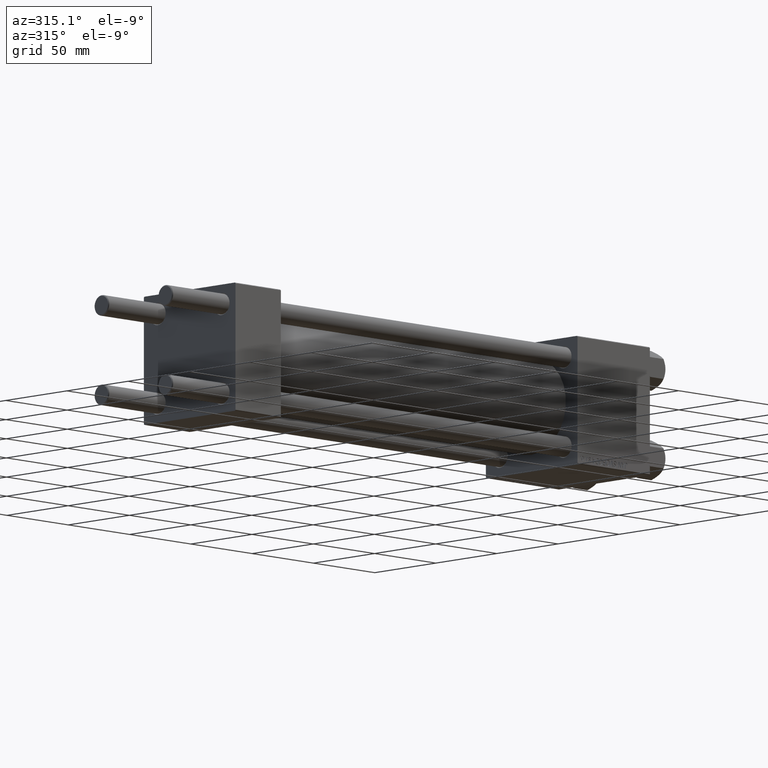
[diagram: clean part render]
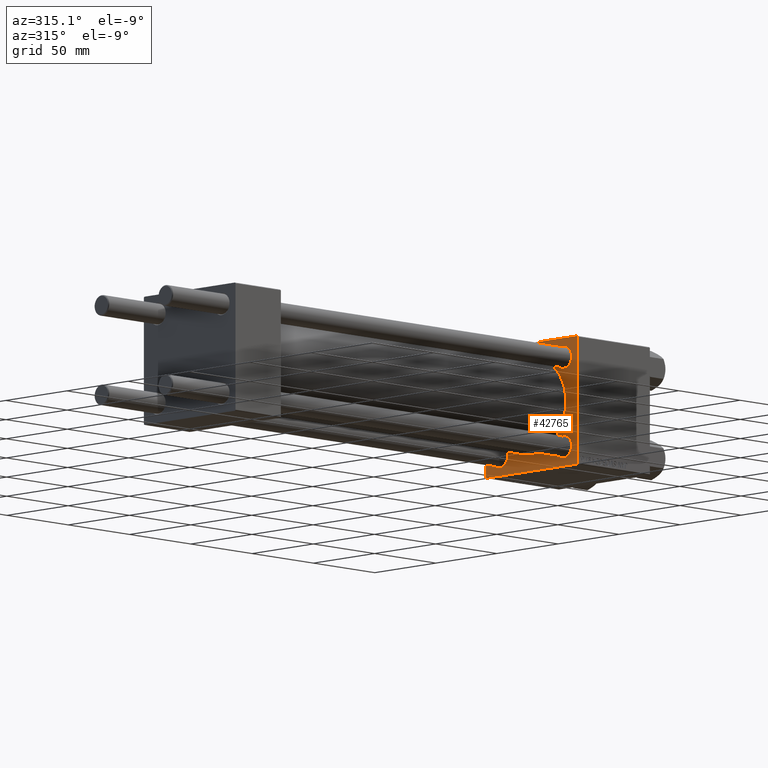
[diagram: same view with one face highlighted and labeled with its STEP entity id]
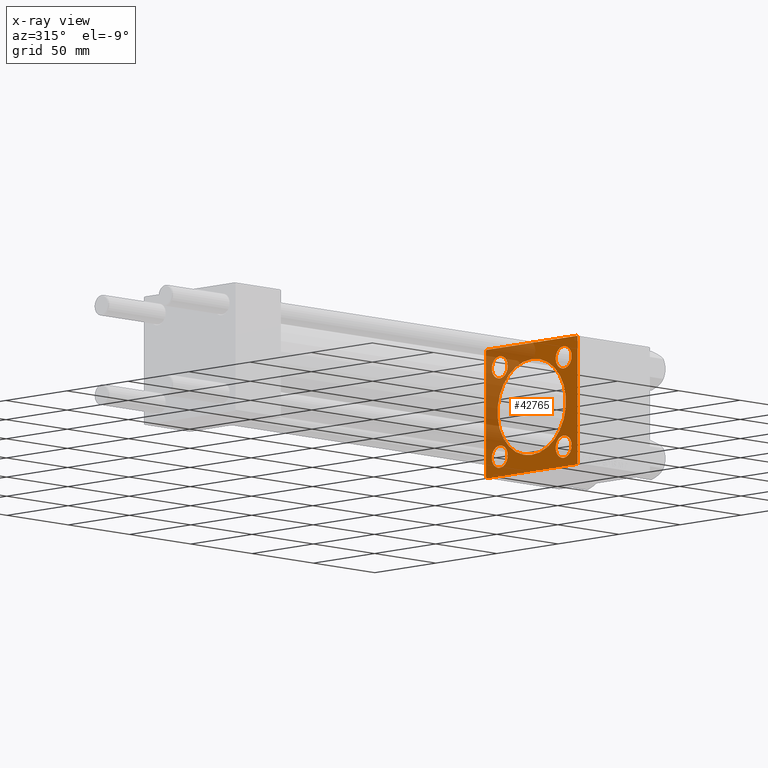
[diagram: x-ray of the same camera — body ghosted, the highlighted face saturated]
A machine part, auxiliary view. The second image highlights one B-rep face of the part: STEP entity #42765.
The next image is the same camera in x-ray: the body ghosted, the highlighted face saturated — about 35% of this face is hidden behind the body in this view.
In plain terms, the highlighted planar face has unit normal (-1, 0, 0).
Its self-contained STEP definition (entity closure, byte-faithful):
#100 = FACE_BOUND ( 'NONE', #22859, .T. ) ;
#249 = VECTOR ( 'NONE', #28038, 1000.000000000000114 ) ;
#697 = CARTESIAN_POINT ( 'NONE',  ( 278.9999999999999432, -37.24999999999792522, -37.25000000000206057 ) ) ;
#913 = CARTESIAN_POINT ( 'NONE',  ( 278.9999999999999432, -26.14999999999999147, -26.15000000000000924 ) ) ;
#1591 = EDGE_CURVE ( 'NONE', #4741, #23432, #27929, .T. ) ;
#1916 = ORIENTED_EDGE ( 'NONE', *, *, #11212, .T. ) ;
#2122 = ORIENTED_EDGE ( 'NONE', *, *, #12270, .F. ) ;
#3001 = CARTESIAN_POINT ( 'NONE',  ( 278.9999999999999432, -37.50000000000000711, -37.00000000000000711 ) ) ;
#3381 = FACE_BOUND ( 'NONE', #7313, .T. ) ;
#3404 = VERTEX_POINT ( 'NONE', #20152 ) ;
#4026 = CIRCLE ( 'NONE', #28886, 28.00000000000000000 ) ;
#4063 = VECTOR ( 'NONE', #49111, 1000.000000000000000 ) ;
#4101 = CARTESIAN_POINT ( 'NONE',  ( 278.9999999999999432, 0.000000000000000000, 28.00000000000000000 ) ) ;
#4186 = AXIS2_PLACEMENT_3D ( 'NONE', #14898, #44824, #45074 ) ;
#4741 = VERTEX_POINT ( 'NONE', #24986 ) ;
#4775 = AXIS2_PLACEMENT_3D ( 'NONE', #12855, #39508, #9583 ) ;
#5037 = VECTOR ( 'NONE', #9227, 1000.000000000000000 ) ;
#5151 = LINE ( 'NONE', #31797, #249 ) ;
#5324 = ORIENTED_EDGE ( 'NONE', *, *, #46575, .T. ) ;
#5419 = CARTESIAN_POINT ( 'NONE',  ( 278.9999999999999432, 26.14999999999999858, -19.64999999999993818 ) ) ;
#5897 = LINE ( 'NONE', #17460, #34071 ) ;
#5959 = VERTEX_POINT ( 'NONE', #39362 ) ;
#6232 = AXIS2_PLACEMENT_3D ( 'NONE', #29224, #44571, #11119 ) ;
#6253 = DIRECTION ( 'NONE',  ( 1.000000000000000000, 0.000000000000000000, 0.000000000000000000 ) ) ;
#7163 = ORIENTED_EDGE ( 'NONE', *, *, #32907, .F. ) ;
#7289 = AXIS2_PLACEMENT_3D ( 'NONE', #23252, #42605, #11194 ) ;
#7313 = EDGE_LOOP ( 'NONE', ( #20052, #21475 ) ) ;
#7728 = DIRECTION ( 'NONE',  ( 1.000000000000000000, 0.000000000000000000, -0.000000000000000000 ) ) ;
#9110 = VERTEX_POINT ( 'NONE', #48770 ) ;
#9227 = DIRECTION ( 'NONE',  ( 0.000000000000000000, -0.7071067811865867636, 0.7071067811865081598 ) ) ;
#9343 = CARTESIAN_POINT ( 'NONE',  ( 278.9999999999999432, 37.25000000000022027, -37.24999999999970868 ) ) ;
#9351 = EDGE_LOOP ( 'NONE', ( #5324, #1916 ) ) ;
#9583 = DIRECTION ( 'NONE',  ( 0.000000000000000000, 0.000000000000000000, 1.000000000000000000 ) ) ;
#9689 = CIRCLE ( 'NONE', #7289, 6.499999999999946709 ) ;
#9772 = CARTESIAN_POINT ( 'NONE',  ( 278.9999999999999432, 26.14999999999999858, -26.15000000000000213 ) ) ;
#9889 = EDGE_CURVE ( 'NONE', #37835, #43730, #23261, .T. ) ;
#10595 = CIRCLE ( 'NONE', #4186, 6.499999999999946709 ) ;
#11119 = DIRECTION ( 'NONE',  ( 0.000000000000000000, 0.000000000000000000, 1.000000000000000000 ) ) ;
#11194 = DIRECTION ( 'NONE',  ( 0.000000000000000000, 0.000000000000000000, 1.000000000000000000 ) ) ;
#11212 = EDGE_CURVE ( 'NONE', #41543, #18047, #4026, .T. ) ;
#11673 = DIRECTION ( 'NONE',  ( 0.000000000000000000, 0.000000000000000000, 1.000000000000000000 ) ) ;
#12270 = EDGE_CURVE ( 'NONE', #3404, #49399, #29490, .T. ) ;
#12855 = CARTESIAN_POINT ( 'NONE',  ( 278.9999999999999432, 26.14999999999999858, 26.15000000000000213 ) ) ;
#12914 = ORIENTED_EDGE ( 'NONE', *, *, #40928, .T. ) ;
#12938 = VERTEX_POINT ( 'NONE', #20269 ) ;
#13032 = VECTOR ( 'NONE', #48354, 1000.000000000000000 ) ;
#13113 = EDGE_CURVE ( 'NONE', #17936, #14608, #9689, .T. ) ;
#13142 = CIRCLE ( 'NONE', #21971, 6.500000000000064837 ) ;
#13360 = DIRECTION ( 'NONE',  ( -0.000000000000000000, -0.7071067811865426878, -0.7071067811865524577 ) ) ;
#13452 = CIRCLE ( 'NONE', #41546, 6.500000000000064837 ) ;
#13807 = VERTEX_POINT ( 'NONE', #24730 ) ;
#14477 = ORIENTED_EDGE ( 'NONE', *, *, #29132, .T. ) ;
#14608 = VERTEX_POINT ( 'NONE', #19305 ) ;
#14747 = CARTESIAN_POINT ( 'NONE',  ( 278.9999999999999432, 3.429011037612589276E-15, -28.00000000000000000 ) ) ;
#14898 = CARTESIAN_POINT ( 'NONE',  ( 278.9999999999999432, 26.14999999999999858, 26.15000000000000213 ) ) ;
#14945 = CARTESIAN_POINT ( 'NONE',  ( 278.9999999999999432, 0.000000000000000000, 0.000000000000000000 ) ) ;
#14967 = DIRECTION ( 'NONE',  ( 1.000000000000000000, 0.000000000000000000, 0.000000000000000000 ) ) ;
#15439 = FACE_BOUND ( 'NONE', #42430, .T. ) ;
#15625 = CARTESIAN_POINT ( 'NONE',  ( 278.9999999999999432, 26.14999999999999858, -26.15000000000000213 ) ) ;
#15690 = CARTESIAN_POINT ( 'NONE',  ( 278.9999999999999432, 37.50000000000000000, 36.99999999999993605 ) ) ;
#16874 = DIRECTION ( 'NONE',  ( 1.000000000000000000, 0.000000000000000000, -0.000000000000000000 ) ) ;
#17393 = VERTEX_POINT ( 'NONE', #19044 ) ;
#17460 = CARTESIAN_POINT ( 'NONE',  ( 278.9999999999999432, 37.50000000000000000, 37.49999999999999289 ) ) ;
#17936 = VERTEX_POINT ( 'NONE', #26488 ) ;
#18047 = VERTEX_POINT ( 'NONE', #4101 ) ;
#18272 = EDGE_CURVE ( 'NONE', #33903, #17393, #44044, .T. ) ;
#18327 = ORIENTED_EDGE ( 'NONE', *, *, #44130, .T. ) ;
#18682 = CARTESIAN_POINT ( 'NONE',  ( 278.9999999999999432, -37.50000000000000000, 37.49999999999997868 ) ) ;
#18713 = FACE_BOUND ( 'NONE', #9351, .T. ) ;
#18981 = CARTESIAN_POINT ( 'NONE',  ( 278.9999999999999432, 0.000000000000000000, 0.000000000000000000 ) ) ;
#19044 = CARTESIAN_POINT ( 'NONE',  ( 278.9999999999999432, 36.99999999999994316, -37.50000000000000000 ) ) ;
#19305 = CARTESIAN_POINT ( 'NONE',  ( 278.9999999999999432, -26.14999999999999147, 19.65000000000005898 ) ) ;
#19368 = EDGE_CURVE ( 'NONE', #3404, #12938, #5151, .T. ) ;
#19673 = ORIENTED_EDGE ( 'NONE', *, *, #23412, .T. ) ;
#20052 = ORIENTED_EDGE ( 'NONE', *, *, #45535, .T. ) ;
#20152 = CARTESIAN_POINT ( 'NONE',  ( 278.9999999999999432, -37.50000000000000000, 36.99999999999986500 ) ) ;
#20269 = CARTESIAN_POINT ( 'NONE',  ( 278.9999999999999432, -36.99999999999988631, 37.49999999999997868 ) ) ;
#21101 = LINE ( 'NONE', #28657, #35774 ) ;
#21475 = ORIENTED_EDGE ( 'NONE', *, *, #1591, .T. ) ;
#21592 = DIRECTION ( 'NONE',  ( 0.000000000000000000, 0.000000000000000000, -1.000000000000000000 ) ) ;
#21754 = ORIENTED_EDGE ( 'NONE', *, *, #32015, .T. ) ;
#21971 = AXIS2_PLACEMENT_3D ( 'NONE', #9772, #25099, #29360 ) ;
#22343 = ORIENTED_EDGE ( 'NONE', *, *, #30239, .T. ) ;
#22344 = ORIENTED_EDGE ( 'NONE', *, *, #13113, .T. ) ;
#22859 = EDGE_LOOP ( 'NONE', ( #46976, #46409 ) ) ;
#23252 = CARTESIAN_POINT ( 'NONE',  ( 278.9999999999999432, -26.14999999999999147, 26.15000000000000924 ) ) ;
#23261 = CIRCLE ( 'NONE', #4775, 6.499999999999946709 ) ;
#23412 = EDGE_CURVE ( 'NONE', #14608, #17936, #31535, .T. ) ;
#23432 = VERTEX_POINT ( 'NONE', #24175 ) ;
#23557 = DIRECTION ( 'NONE',  ( 0.000000000000000000, 0.000000000000000000, 1.000000000000000000 ) ) ;
#23938 = AXIS2_PLACEMENT_3D ( 'NONE', #40693, #6253, #21592 ) ;
#24175 = CARTESIAN_POINT ( 'NONE',  ( 278.9999999999999432, -26.14999999999999147, -19.64999999999994529 ) ) ;
#24391 = EDGE_LOOP ( 'NONE', ( #22344, #19673 ) ) ;
#24730 = CARTESIAN_POINT ( 'NONE',  ( 278.9999999999999432, 26.14999999999999858, -32.65000000000006963 ) ) ;
#24986 = CARTESIAN_POINT ( 'NONE',  ( 278.9999999999999432, -26.14999999999999147, -32.65000000000007674 ) ) ;
#25099 = DIRECTION ( 'NONE',  ( 1.000000000000000000, 0.000000000000000000, -0.000000000000000000 ) ) ;
#25206 = EDGE_LOOP ( 'NONE', ( #14477, #22343, #2122, #37861, #7163, #12914, #42066, #30421 ) ) ;
#26488 = CARTESIAN_POINT ( 'NONE',  ( 278.9999999999999432, -26.14999999999999147, 32.64999999999995595 ) ) ;
#26691 = VECTOR ( 'NONE', #33761, 1000.000000000000000 ) ;
#27837 = EDGE_CURVE ( 'NONE', #43730, #37835, #10595, .T. ) ;
#27929 = CIRCLE ( 'NONE', #6232, 6.500000000000064837 ) ;
#28038 = DIRECTION ( 'NONE',  ( -0.000000000000000000, 0.7071067811865474617, 0.7071067811865474617 ) ) ;
#28516 = CARTESIAN_POINT ( 'NONE',  ( 278.9999999999999432, 37.50000000000000000, 37.49999999999999289 ) ) ;
#28657 = CARTESIAN_POINT ( 'NONE',  ( 278.9999999999999432, 37.24999999999996447, 37.24999999999996447 ) ) ;
#28886 = AXIS2_PLACEMENT_3D ( 'NONE', #18981, #14967, #30299 ) ;
#29048 = EDGE_CURVE ( 'NONE', #47874, #33903, #40317, .T. ) ;
#29132 = EDGE_CURVE ( 'NONE', #17393, #5959, #45339, .T. ) ;
#29224 = CARTESIAN_POINT ( 'NONE',  ( 278.9999999999999432, -26.14999999999999147, -26.15000000000000924 ) ) ;
#29360 = DIRECTION ( 'NONE',  ( 0.000000000000000000, 0.000000000000000000, 1.000000000000000000 ) ) ;
#29490 = LINE ( 'NONE', #18682, #4063 ) ;
#30239 = EDGE_CURVE ( 'NONE', #5959, #49399, #39653, .T. ) ;
#30278 = DIRECTION ( 'NONE',  ( -1.000000000000000000, -0.000000000000000000, 0.000000000000000000 ) ) ;
#30299 = DIRECTION ( 'NONE',  ( 0.000000000000000000, 0.000000000000000000, -1.000000000000000000 ) ) ;
#30421 = ORIENTED_EDGE ( 'NONE', *, *, #18272, .T. ) ;
#31479 = DIRECTION ( 'NONE',  ( 0.000000000000000000, 0.000000000000000000, 1.000000000000000000 ) ) ;
#31535 = CIRCLE ( 'NONE', #37960, 6.499999999999946709 ) ;
#31542 = VECTOR ( 'NONE', #13360, 1000.000000000000000 ) ;
#31797 = CARTESIAN_POINT ( 'NONE',  ( 278.9999999999999432, -37.24999999999992895, 37.24999999999992895 ) ) ;
#32015 = EDGE_CURVE ( 'NONE', #45649, #13807, #13142, .T. ) ;
#32907 = EDGE_CURVE ( 'NONE', #9110, #12938, #5897, .T. ) ;
#33761 = DIRECTION ( 'NONE',  ( 0.000000000000000000, -1.000000000000000000, 0.000000000000000000 ) ) ;
#33903 = VERTEX_POINT ( 'NONE', #42586 ) ;
#34071 = VECTOR ( 'NONE', #44860, 1000.000000000000000 ) ;
#34309 = AXIS2_PLACEMENT_3D ( 'NONE', #15625, #39255, #42267 ) ;
#35774 = VECTOR ( 'NONE', #39249, 1000.000000000000114 ) ;
#37491 = CIRCLE ( 'NONE', #34309, 6.500000000000064837 ) ;
#37828 = FACE_BOUND ( 'NONE', #24391, .T. ) ;
#37835 = VERTEX_POINT ( 'NONE', #45489 ) ;
#37861 = ORIENTED_EDGE ( 'NONE', *, *, #19368, .T. ) ;
#37960 = AXIS2_PLACEMENT_3D ( 'NONE', #47305, #16874, #31479 ) ;
#39249 = DIRECTION ( 'NONE',  ( 0.000000000000000000, 0.7071067811865474617, -0.7071067811865474617 ) ) ;
#39255 = DIRECTION ( 'NONE',  ( 1.000000000000000000, 0.000000000000000000, -0.000000000000000000 ) ) ;
#39362 = CARTESIAN_POINT ( 'NONE',  ( 278.9999999999999432, -36.99999999999995737, -37.50000000000000000 ) ) ;
#39508 = DIRECTION ( 'NONE',  ( 1.000000000000000000, 0.000000000000000000, -0.000000000000000000 ) ) ;
#39653 = LINE ( 'NONE', #697, #5037 ) ;
#40317 = LINE ( 'NONE', #28516, #13032 ) ;
#40681 = AXIS2_PLACEMENT_3D ( 'NONE', #14945, #30278, #11673 ) ;
#40693 = CARTESIAN_POINT ( 'NONE',  ( 278.9999999999999432, 0.000000000000000000, 0.000000000000000000 ) ) ;
#40928 = EDGE_CURVE ( 'NONE', #9110, #47874, #21101, .T. ) ;
#41543 = VERTEX_POINT ( 'NONE', #14747 ) ;
#41546 = AXIS2_PLACEMENT_3D ( 'NONE', #913, #7728, #23557 ) ;
#42066 = ORIENTED_EDGE ( 'NONE', *, *, #29048, .T. ) ;
#42267 = DIRECTION ( 'NONE',  ( 0.000000000000000000, 0.000000000000000000, 1.000000000000000000 ) ) ;
#42430 = EDGE_LOOP ( 'NONE', ( #21754, #18327 ) ) ;
#42586 = CARTESIAN_POINT ( 'NONE',  ( 278.9999999999999432, 37.50000000000000000, -36.99999999999993605 ) ) ;
#42605 = DIRECTION ( 'NONE',  ( 1.000000000000000000, 0.000000000000000000, -0.000000000000000000 ) ) ;
#42765 = ADVANCED_FACE ( 'NONE', ( #37828, #100, #15439, #3381, #18713, #49397 ), #46127, .T. ) ;
#43730 = VERTEX_POINT ( 'NONE', #44122 ) ;
#44044 = LINE ( 'NONE', #9343, #31542 ) ;
#44122 = CARTESIAN_POINT ( 'NONE',  ( 278.9999999999999432, 26.14999999999999858, 32.64999999999995595 ) ) ;
#44130 = EDGE_CURVE ( 'NONE', #13807, #45649, #37491, .T. ) ;
#44571 = DIRECTION ( 'NONE',  ( 1.000000000000000000, 0.000000000000000000, -0.000000000000000000 ) ) ;
#44822 = CIRCLE ( 'NONE', #23938, 28.00000000000000000 ) ;
#44824 = DIRECTION ( 'NONE',  ( 1.000000000000000000, 0.000000000000000000, -0.000000000000000000 ) ) ;
#44860 = DIRECTION ( 'NONE',  ( 0.000000000000000000, -1.000000000000000000, -1.850371707708594316E-16 ) ) ;
#45074 = DIRECTION ( 'NONE',  ( 0.000000000000000000, 0.000000000000000000, 1.000000000000000000 ) ) ;
#45339 = LINE ( 'NONE', #49613, #26691 ) ;
#45489 = CARTESIAN_POINT ( 'NONE',  ( 278.9999999999999432, 26.14999999999999858, 19.65000000000005187 ) ) ;
#45535 = EDGE_CURVE ( 'NONE', #23432, #4741, #13452, .T. ) ;
#45649 = VERTEX_POINT ( 'NONE', #5419 ) ;
#46127 = PLANE ( 'NONE',  #40681 ) ;
#46409 = ORIENTED_EDGE ( 'NONE', *, *, #9889, .T. ) ;
#46575 = EDGE_CURVE ( 'NONE', #18047, #41543, #44822, .T. ) ;
#46976 = ORIENTED_EDGE ( 'NONE', *, *, #27837, .T. ) ;
#47305 = CARTESIAN_POINT ( 'NONE',  ( 278.9999999999999432, -26.14999999999999147, 26.15000000000000924 ) ) ;
#47874 = VERTEX_POINT ( 'NONE', #15690 ) ;
#48354 = DIRECTION ( 'NONE',  ( 0.000000000000000000, 0.000000000000000000, -1.000000000000000000 ) ) ;
#48770 = CARTESIAN_POINT ( 'NONE',  ( 278.9999999999999432, 36.99999999999994316, 37.49999999999999289 ) ) ;
#49111 = DIRECTION ( 'NONE',  ( 0.000000000000000000, -9.251858538542972814E-17, -1.000000000000000000 ) ) ;
#49397 = FACE_OUTER_BOUND ( 'NONE', #25206, .T. ) ;
#49399 = VERTEX_POINT ( 'NONE', #3001 ) ;
#49613 = CARTESIAN_POINT ( 'NONE',  ( 278.9999999999999432, 37.50000000000000000, -37.50000000000000000 ) ) ;